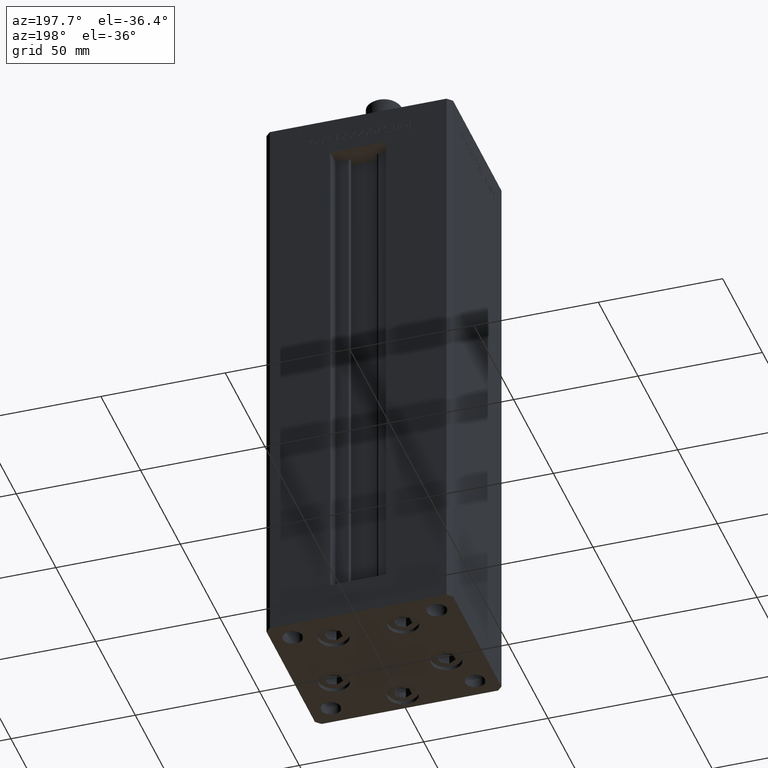
[diagram: clean part render]
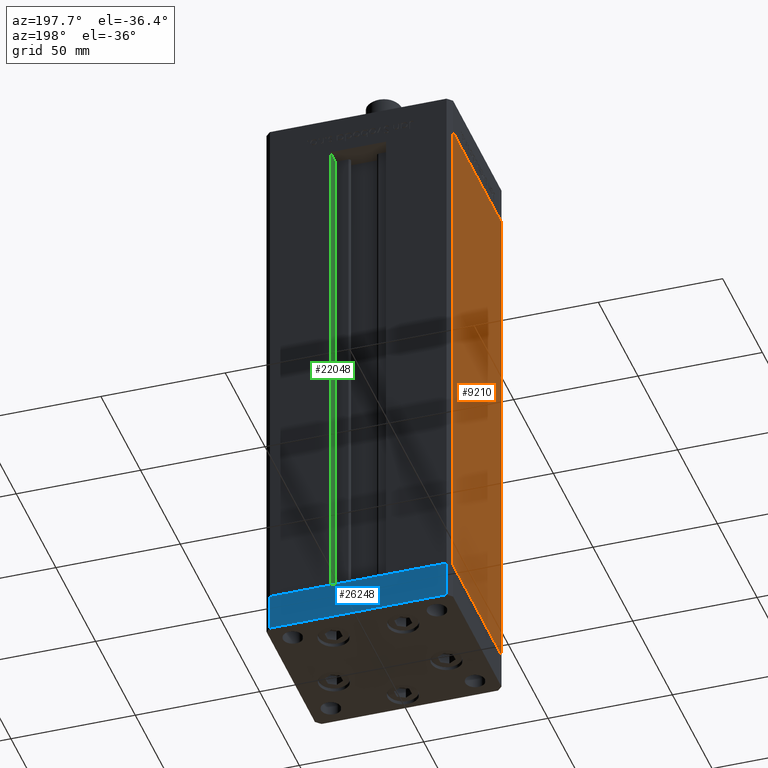
[diagram: same view with three faces highlighted in distinct colors, each labeled with its STEP entity id]
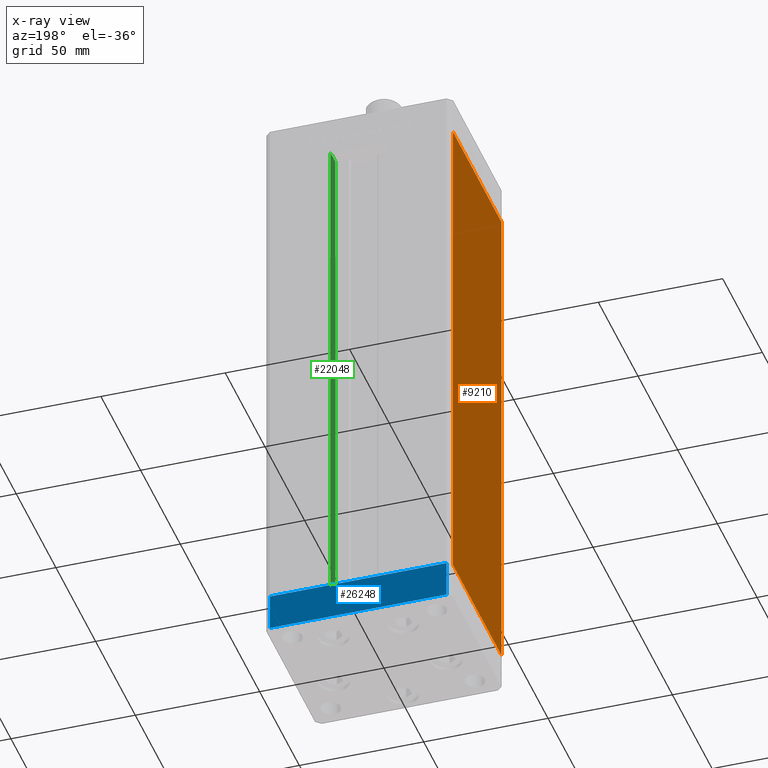
[diagram: x-ray of the same camera — body ghosted, the three highlighted faces saturated]
A machine part, auxiliary view with three faces highlighted in distinct colors.
The next image is the same camera in x-ray (body ghosted, the three faces saturated) — at least one of them is partly hidden behind the body in this view.
Their STEP definitions:

[orange] entity #9210 — the highlighted planar face has unit normal (1, 0, 0).
#256 = VERTEX_POINT ( 'NONE', #23943 ) ;
#365 = LINE ( 'NONE', #36636, #27156 ) ;
#575 = ORIENTED_EDGE ( 'NONE', *, *, #2232, .F. ) ;
#2232 = EDGE_CURVE ( 'NONE', #42012, #256, #21652, .T. ) ;
#2690 = ORIENTED_EDGE ( 'NONE', *, *, #41335, .T. ) ;
#6993 = CARTESIAN_POINT ( 'NONE',  ( -37.50000000000000711, 30.50000000000000000, 206.0000000000000000 ) ) ;
#8965 = CARTESIAN_POINT ( 'NONE',  ( -37.49999999999999289, -30.50000000000000000, 206.0000000000000000 ) ) ;
#9210 = ADVANCED_FACE ( 'NONE', ( #43238 ), #27089, .F. ) ;
#9877 = DIRECTION ( 'NONE',  ( 2.275047181608927644E-16, -1.000000000000000000, 0.000000000000000000 ) ) ;
#12828 = DIRECTION ( 'NONE',  ( -0.000000000000000000, -0.000000000000000000, -1.000000000000000000 ) ) ;
#15026 = VECTOR ( 'NONE', #17423, 1000.000000000000000 ) ;
#15060 = CARTESIAN_POINT ( 'NONE',  ( -37.50000000000000711, 30.50000000000000000, 206.0000000000000000 ) ) ;
#15317 = EDGE_LOOP ( 'NONE', ( #2690, #575, #16467, #15859 ) ) ;
#15859 = ORIENTED_EDGE ( 'NONE', *, *, #43839, .T. ) ;
#16467 = ORIENTED_EDGE ( 'NONE', *, *, #23113, .F. ) ;
#17423 = DIRECTION ( 'NONE',  ( -0.000000000000000000, -0.000000000000000000, -1.000000000000000000 ) ) ;
#21183 = VERTEX_POINT ( 'NONE', #49042 ) ;
#21435 = LINE ( 'NONE', #45773, #25372 ) ;
#21652 = LINE ( 'NONE', #8965, #15026 ) ;
#21802 = LINE ( 'NONE', #47182, #25231 ) ;
#23113 = EDGE_CURVE ( 'NONE', #24558, #42012, #21802, .T. ) ;
#23132 = DIRECTION ( 'NONE',  ( 1.000000000000000000, 2.275047181608928137E-16, -0.000000000000000000 ) ) ;
#23943 = CARTESIAN_POINT ( 'NONE',  ( -37.49999999999999289, -30.50000000000000000, 0.000000000000000000 ) ) ;
#24558 = VERTEX_POINT ( 'NONE', #15060 ) ;
#25231 = VECTOR ( 'NONE', #9877, 1000.000000000000000 ) ;
#25372 = VECTOR ( 'NONE', #25655, 1000.000000000000000 ) ;
#25655 = DIRECTION ( 'NONE',  ( 2.275047181608927644E-16, -1.000000000000000000, 0.000000000000000000 ) ) ;
#27089 = PLANE ( 'NONE',  #28345 ) ;
#27156 = VECTOR ( 'NONE', #12828, 1000.000000000000000 ) ;
#28345 = AXIS2_PLACEMENT_3D ( 'NONE', #6993, #23132, #30797 ) ;
#30797 = DIRECTION ( 'NONE',  ( -2.275047181608928137E-16, 1.000000000000000000, 0.000000000000000000 ) ) ;
#36636 = CARTESIAN_POINT ( 'NONE',  ( -37.50000000000000711, 30.50000000000000000, 206.0000000000000000 ) ) ;
#40264 = CARTESIAN_POINT ( 'NONE',  ( -37.49999999999999289, -30.50000000000000000, 206.0000000000000000 ) ) ;
#41335 = EDGE_CURVE ( 'NONE', #21183, #256, #21435, .T. ) ;
#42012 = VERTEX_POINT ( 'NONE', #40264 ) ;
#43238 = FACE_OUTER_BOUND ( 'NONE', #15317, .T. ) ;
#43839 = EDGE_CURVE ( 'NONE', #24558, #21183, #365, .T. ) ;
#45773 = CARTESIAN_POINT ( 'NONE',  ( -37.50000000000000711, 30.50000000000000000, 0.000000000000000000 ) ) ;
#47182 = CARTESIAN_POINT ( 'NONE',  ( -37.50000000000000711, 30.50000000000000000, 206.0000000000000000 ) ) ;
#49042 = CARTESIAN_POINT ( 'NONE',  ( -37.50000000000000711, 30.50000000000000000, 0.000000000000000000 ) ) ;

[blue] entity #26248 — the highlighted planar face has unit normal (0, 1, 0).
#1899 = DIRECTION ( 'NONE',  ( -1.954618001100629052E-16, 1.000000000000000000, 0.000000000000000000 ) ) ;
#2258 = DIRECTION ( 'NONE',  ( -1.000000000000000000, -1.954618001100629052E-16, 0.000000000000000000 ) ) ;
#2683 = FACE_OUTER_BOUND ( 'NONE', #52184, .T. ) ;
#5240 = CARTESIAN_POINT ( 'NONE',  ( 35.49999999999992184, 32.50000000000000711, 0.000000000000000000 ) ) ;
#6571 = CARTESIAN_POINT ( 'NONE',  ( 35.49999999999992184, 32.50000000000000711, -15.00000000000000000 ) ) ;
#8105 = EDGE_CURVE ( 'NONE', #20689, #25449, #34828, .T. ) ;
#11096 = CARTESIAN_POINT ( 'NONE',  ( -35.50000000000002842, 32.49999999999999289, 0.000000000000000000 ) ) ;
#12596 = VECTOR ( 'NONE', #50120, 1000.000000000000000 ) ;
#13965 = VECTOR ( 'NONE', #2258, 1000.000000000000000 ) ;
#14083 = DIRECTION ( 'NONE',  ( -1.000000000000000000, -1.954618001100629052E-16, 0.000000000000000000 ) ) ;
#16571 = VERTEX_POINT ( 'NONE', #33715 ) ;
#18233 = VERTEX_POINT ( 'NONE', #6571 ) ;
#19879 = CARTESIAN_POINT ( 'NONE',  ( 35.49999999999992184, 32.50000000000000711, -15.00000000000000000 ) ) ;
#20689 = VERTEX_POINT ( 'NONE', #5240 ) ;
#23422 = ORIENTED_EDGE ( 'NONE', *, *, #52236, .T. ) ;
#23591 = DIRECTION ( 'NONE',  ( -1.000000000000000000, -1.954618001100629052E-16, 0.000000000000000000 ) ) ;
#23899 = EDGE_CURVE ( 'NONE', #18233, #20689, #45891, .T. ) ;
#25449 = VERTEX_POINT ( 'NONE', #11096 ) ;
#26081 = EDGE_CURVE ( 'NONE', #16571, #25449, #29182, .T. ) ;
#26248 = ADVANCED_FACE ( 'NONE', ( #2683 ), #42129, .T. ) ;
#28675 = VECTOR ( 'NONE', #44543, 1000.000000000000000 ) ;
#29182 = LINE ( 'NONE', #45323, #28675 ) ;
#31008 = LINE ( 'NONE', #19879, #44981 ) ;
#33715 = CARTESIAN_POINT ( 'NONE',  ( -35.50000000000002842, 32.49999999999999289, -15.00000000000000000 ) ) ;
#33978 = CARTESIAN_POINT ( 'NONE',  ( 35.49999999999992184, 32.50000000000000711, -15.00000000000000000 ) ) ;
#34828 = LINE ( 'NONE', #38775, #13965 ) ;
#36334 = AXIS2_PLACEMENT_3D ( 'NONE', #50333, #1899, #14083 ) ;
#38775 = CARTESIAN_POINT ( 'NONE',  ( 35.49999999999992184, 32.50000000000000711, 0.000000000000000000 ) ) ;
#42129 = PLANE ( 'NONE',  #36334 ) ;
#43821 = ORIENTED_EDGE ( 'NONE', *, *, #8105, .F. ) ;
#44543 = DIRECTION ( 'NONE',  ( 0.000000000000000000, 0.000000000000000000, 1.000000000000000000 ) ) ;
#44981 = VECTOR ( 'NONE', #23591, 1000.000000000000000 ) ;
#45096 = ORIENTED_EDGE ( 'NONE', *, *, #23899, .F. ) ;
#45323 = CARTESIAN_POINT ( 'NONE',  ( -35.50000000000002842, 32.49999999999999289, -15.00000000000000000 ) ) ;
#45891 = LINE ( 'NONE', #33978, #12596 ) ;
#47052 = ORIENTED_EDGE ( 'NONE', *, *, #26081, .T. ) ;
#50120 = DIRECTION ( 'NONE',  ( 0.000000000000000000, 0.000000000000000000, 1.000000000000000000 ) ) ;
#50333 = CARTESIAN_POINT ( 'NONE',  ( 35.49999999999992184, 32.50000000000000711, -15.00000000000000000 ) ) ;
#52184 = EDGE_LOOP ( 'NONE', ( #43821, #45096, #23422, #47052 ) ) ;
#52236 = EDGE_CURVE ( 'NONE', #18233, #16571, #31008, .T. ) ;

[green] entity #22048 — the highlighted planar face has unit normal (1, 0, 0).
#1901 = ORIENTED_EDGE ( 'NONE', *, *, #10367, .F. ) ;
#2257 = CARTESIAN_POINT ( 'NONE',  ( 11.25000000000000178, 25.99999999999999289, 0.000000000000000000 ) ) ;
#3948 = VERTEX_POINT ( 'NONE', #2257 ) ;
#5435 = EDGE_LOOP ( 'NONE', ( #39881, #1901, #5629, #36078 ) ) ;
#5629 = ORIENTED_EDGE ( 'NONE', *, *, #33989, .T. ) ;
#7302 = LINE ( 'NONE', #7554, #29468 ) ;
#7554 = CARTESIAN_POINT ( 'NONE',  ( 11.25000000000000178, 32.49999999999999289, 0.000000000000000000 ) ) ;
#9278 = CARTESIAN_POINT ( 'NONE',  ( 11.25000000000000178, 25.99999999999999289, 206.0000000000000000 ) ) ;
#10367 = EDGE_CURVE ( 'NONE', #3948, #49635, #11458, .T. ) ;
#11458 = LINE ( 'NONE', #43994, #47012 ) ;
#12219 = DIRECTION ( 'NONE',  ( 1.000000000000000000, -0.000000000000000000, 0.000000000000000000 ) ) ;
#12300 = DIRECTION ( 'NONE',  ( -0.000000000000000000, -0.000000000000000000, 1.000000000000000000 ) ) ;
#12974 = EDGE_CURVE ( 'NONE', #47877, #37382, #42015, .T. ) ;
#13451 = DIRECTION ( 'NONE',  ( -0.000000000000000000, -1.000000000000000000, 0.000000000000000000 ) ) ;
#16187 = CARTESIAN_POINT ( 'NONE',  ( 11.25000000000000178, 25.99999999999999289, 0.000000000000000000 ) ) ;
#16450 = PLANE ( 'NONE',  #21091 ) ;
#18664 = DIRECTION ( 'NONE',  ( -0.000000000000000000, -0.000000000000000000, 1.000000000000000000 ) ) ;
#21091 = AXIS2_PLACEMENT_3D ( 'NONE', #16187, #12219, #40518 ) ;
#21431 = CARTESIAN_POINT ( 'NONE',  ( 11.24999999999999467, 32.49999999999999289, 206.0000000000000000 ) ) ;
#22048 = ADVANCED_FACE ( 'NONE', ( #36276 ), #16450, .F. ) ;
#22991 = EDGE_CURVE ( 'NONE', #49635, #47877, #7302, .T. ) ;
#29468 = VECTOR ( 'NONE', #12300, 1000.000000000000000 ) ;
#30825 = LINE ( 'NONE', #46181, #45832 ) ;
#31855 = VECTOR ( 'NONE', #13451, 1000.000000000000000 ) ;
#33989 = EDGE_CURVE ( 'NONE', #3948, #37382, #30825, .T. ) ;
#35311 = CARTESIAN_POINT ( 'NONE',  ( 11.25000000000000178, 32.49999999999999289, 0.000000000000000000 ) ) ;
#36078 = ORIENTED_EDGE ( 'NONE', *, *, #12974, .F. ) ;
#36276 = FACE_OUTER_BOUND ( 'NONE', #5435, .T. ) ;
#37382 = VERTEX_POINT ( 'NONE', #9278 ) ;
#39762 = DIRECTION ( 'NONE',  ( 0.000000000000000000, 1.000000000000000000, 0.000000000000000000 ) ) ;
#39881 = ORIENTED_EDGE ( 'NONE', *, *, #22991, .F. ) ;
#40518 = DIRECTION ( 'NONE',  ( 0.000000000000000000, 0.000000000000000000, -1.000000000000000000 ) ) ;
#42015 = LINE ( 'NONE', #49954, #31855 ) ;
#43994 = CARTESIAN_POINT ( 'NONE',  ( 11.25000000000000178, 25.99999999999999289, 0.000000000000000000 ) ) ;
#45832 = VECTOR ( 'NONE', #18664, 1000.000000000000000 ) ;
#46181 = CARTESIAN_POINT ( 'NONE',  ( 11.25000000000000178, 25.99999999999999289, 0.000000000000000000 ) ) ;
#47012 = VECTOR ( 'NONE', #39762, 1000.000000000000000 ) ;
#47877 = VERTEX_POINT ( 'NONE', #21431 ) ;
#49635 = VERTEX_POINT ( 'NONE', #35311 ) ;
#49954 = CARTESIAN_POINT ( 'NONE',  ( 11.25000000000000178, 0.000000000000000000, 206.0000000000000000 ) ) ;